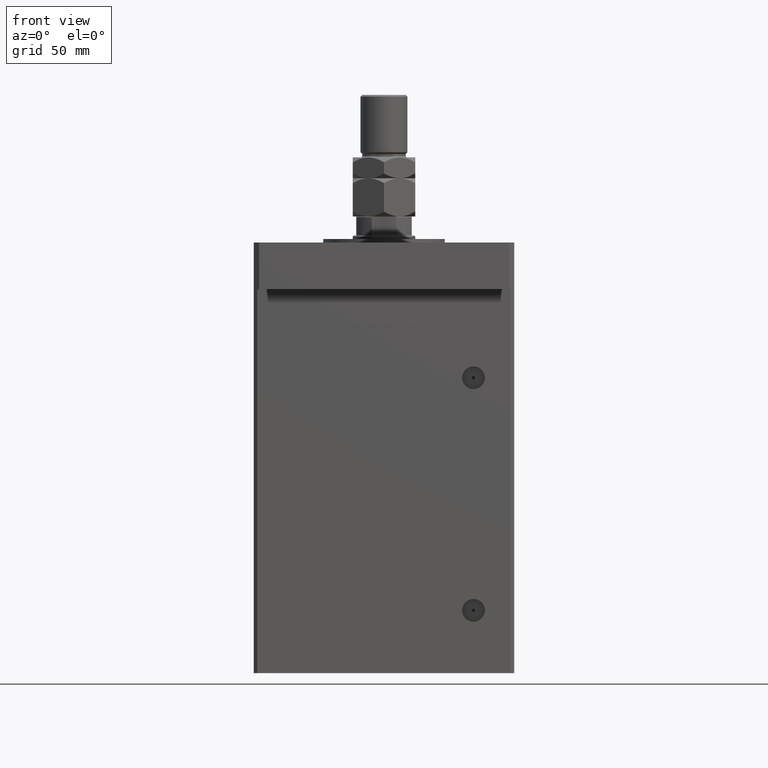
[diagram: clean part render]
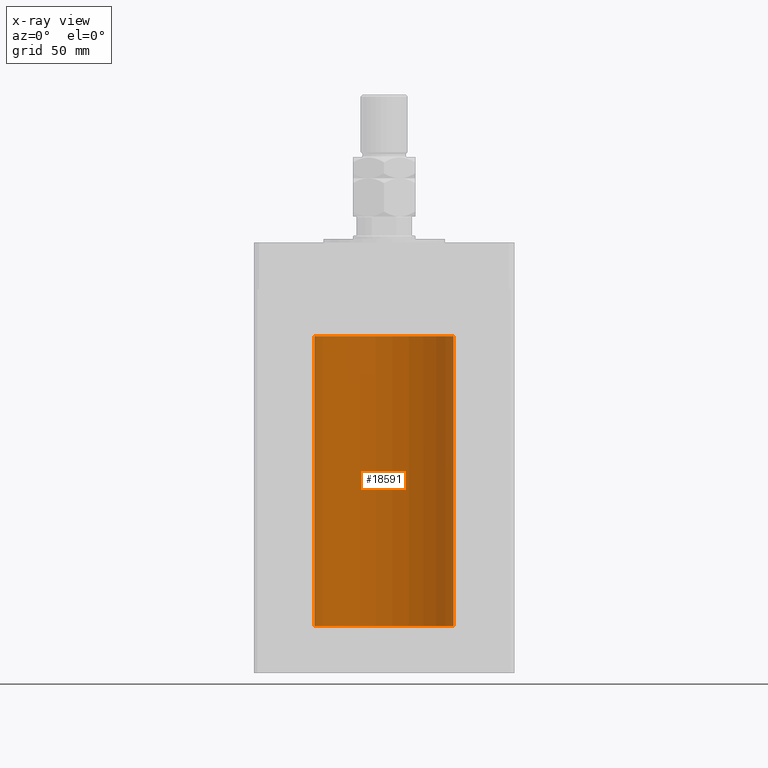
[diagram: x-ray — body ghosted, one internal face saturated and labeled with its STEP entity id]
A machine part, front view, then the same camera in x-ray: the body is ghosted and one INTERNAL B-rep face — a face not visible from any outside direction — is saturated and labeled: STEP entity #18591.
In plain terms, the highlighted cylindrical surface (partial cylindrical patch) has radius 40 mm, axis along (-0, -0, -1).
Its self-contained STEP definition (entity closure, byte-faithful):
#5260 = CARTESIAN_POINT ( 'NONE',  ( 40.00000000000000000, 4.898587196589412237E-15, 167.0000000000000000 ) ) ;
#5343 = DIRECTION ( 'NONE',  ( -0.000000000000000000, -0.000000000000000000, -1.000000000000000000 ) ) ;
#6209 = VECTOR ( 'NONE', #21392, 1000.000000000000000 ) ;
#7070 = CARTESIAN_POINT ( 'NONE',  ( 0.000000000000000000, 0.000000000000000000, 0.000000000000000000 ) ) ;
#8610 = CIRCLE ( 'NONE', #43348, 40.00000000000000000 ) ;
#10416 = ORIENTED_EDGE ( 'NONE', *, *, #51905, .T. ) ;
#13103 = ORIENTED_EDGE ( 'NONE', *, *, #24005, .T. ) ;
#18505 = CARTESIAN_POINT ( 'NONE',  ( -40.00000000000000000, 0.000000000000000000, 167.0000000000000000 ) ) ;
#18591 = ADVANCED_FACE ( 'NONE', ( #50310 ), #50585, .F. ) ;
#20456 = CARTESIAN_POINT ( 'NONE',  ( 0.000000000000000000, 0.000000000000000000, 167.0000000000000000 ) ) ;
#20744 = DIRECTION ( 'NONE',  ( -0.000000000000000000, 0.000000000000000000, 1.000000000000000000 ) ) ;
#21392 = DIRECTION ( 'NONE',  ( -0.000000000000000000, -0.000000000000000000, -1.000000000000000000 ) ) ;
#24005 = EDGE_CURVE ( 'NONE', #25181, #34135, #32644, .T. ) ;
#25181 = VERTEX_POINT ( 'NONE', #5260 ) ;
#29265 = EDGE_CURVE ( 'NONE', #54237, #48539, #8610, .T. ) ;
#30619 = CARTESIAN_POINT ( 'NONE',  ( 40.00000000000000000, 4.898587196589412237E-15, 167.0000000000000000 ) ) ;
#30766 = DIRECTION ( 'NONE',  ( -1.000000000000000000, 0.000000000000000000, 0.000000000000000000 ) ) ;
#32644 = CIRCLE ( 'NONE', #52241, 40.00000000000000000 ) ;
#34135 = VERTEX_POINT ( 'NONE', #18505 ) ;
#36817 = CARTESIAN_POINT ( 'NONE',  ( 40.00000000000000000, 4.898587196589412237E-15, 0.000000000000000000 ) ) ;
#38292 = CARTESIAN_POINT ( 'NONE',  ( 0.000000000000000000, 0.000000000000000000, 167.0000000000000000 ) ) ;
#40269 = EDGE_CURVE ( 'NONE', #25181, #54237, #47624, .T. ) ;
#40300 = DIRECTION ( 'NONE',  ( -0.000000000000000000, 0.000000000000000000, 1.000000000000000000 ) ) ;
#43348 = AXIS2_PLACEMENT_3D ( 'NONE', #7070, #40300, #49225 ) ;
#44595 = LINE ( 'NONE', #49056, #45642 ) ;
#44864 = DIRECTION ( 'NONE',  ( -0.000000000000000000, -0.000000000000000000, -1.000000000000000000 ) ) ;
#45294 = DIRECTION ( 'NONE',  ( 1.000000000000000000, 0.000000000000000000, 0.000000000000000000 ) ) ;
#45642 = VECTOR ( 'NONE', #44864, 1000.000000000000000 ) ;
#46494 = CARTESIAN_POINT ( 'NONE',  ( -40.00000000000000000, 0.000000000000000000, 0.000000000000000000 ) ) ;
#47624 = LINE ( 'NONE', #30619, #6209 ) ;
#48539 = VERTEX_POINT ( 'NONE', #46494 ) ;
#49056 = CARTESIAN_POINT ( 'NONE',  ( -40.00000000000000000, 0.000000000000000000, 167.0000000000000000 ) ) ;
#49225 = DIRECTION ( 'NONE',  ( 1.000000000000000000, 0.000000000000000000, 0.000000000000000000 ) ) ;
#49520 = ORIENTED_EDGE ( 'NONE', *, *, #40269, .F. ) ;
#49537 = EDGE_LOOP ( 'NONE', ( #49520, #13103, #10416, #51085 ) ) ;
#50310 = FACE_OUTER_BOUND ( 'NONE', #49537, .T. ) ;
#50585 = CYLINDRICAL_SURFACE ( 'NONE', #52045, 40.00000000000000000 ) ;
#51085 = ORIENTED_EDGE ( 'NONE', *, *, #29265, .F. ) ;
#51905 = EDGE_CURVE ( 'NONE', #34135, #48539, #44595, .T. ) ;
#52045 = AXIS2_PLACEMENT_3D ( 'NONE', #38292, #5343, #30766 ) ;
#52241 = AXIS2_PLACEMENT_3D ( 'NONE', #20456, #20744, #45294 ) ;
#54237 = VERTEX_POINT ( 'NONE', #36817 ) ;